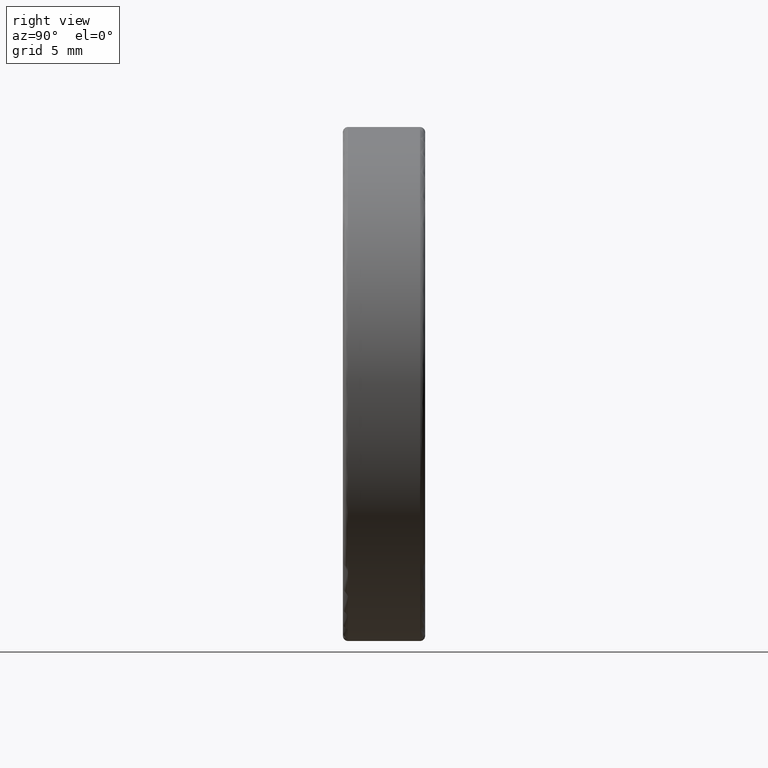
[diagram: clean part render]
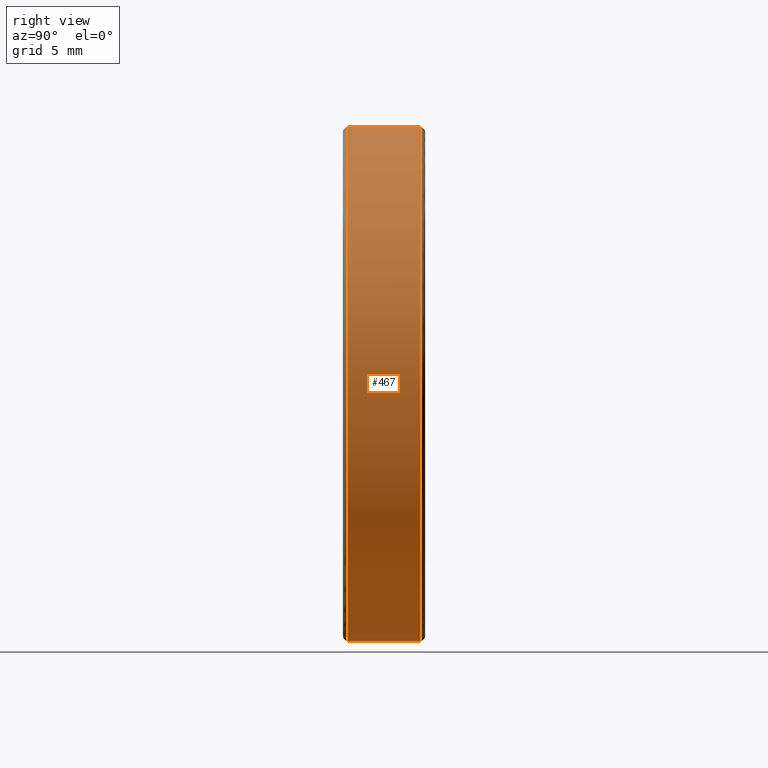
[diagram: same view with one face highlighted and labeled with its STEP entity id]
A machine part, right view. The second image highlights one B-rep face of the part: STEP entity #467.
In plain terms, the highlighted cylindrical surface (partial cylindrical patch) has radius 12.5 mm, axis along (-0, -1, -0).
Its self-contained STEP definition (entity closure, byte-faithful):
#35 = CARTESIAN_POINT ( 'NONE',  ( -4.682026255059964726, 0.1550240230017252141, 37.50000000000000711 ) ) ;
#40 = CARTESIAN_POINT ( 'NONE',  ( -4.682026255059962949, -3.344975976998274980, 12.50000000000000000 ) ) ;
#45 = ORIENTED_EDGE ( 'NONE', *, *, #162, .T. ) ;
#50 = VERTEX_POINT ( 'NONE', #674 ) ;
#53 = CYLINDRICAL_SURFACE ( 'NONE', #597, 12.50000000000000000 ) ;
#76 = DIRECTION ( 'NONE',  ( -0.0000000000000000000, -1.000000000000000000, -0.0000000000000000000 ) ) ;
#81 = DIRECTION ( 'NONE',  ( 0.0000000000000000000, 1.000000000000000000, 0.0000000000000000000 ) ) ;
#114 = CARTESIAN_POINT ( 'NONE',  ( -4.682026255059964726, 0.1550240230017252141, 25.00000000000000000 ) ) ;
#125 = DIRECTION ( 'NONE',  ( 0.0000000000000000000, 0.0000000000000000000, -1.000000000000000000 ) ) ;
#128 = VERTEX_POINT ( 'NONE', #40 ) ;
#162 = EDGE_CURVE ( 'NONE', #604, #50, #164, .T. ) ;
#164 = LINE ( 'NONE', #320, #671 ) ;
#175 = CARTESIAN_POINT ( 'NONE',  ( -4.682026255059964726, 0.4050240230017252419, 25.00000000000000000 ) ) ;
#256 = CIRCLE ( 'NONE', #466, 12.50000000000000355 ) ;
#270 = EDGE_CURVE ( 'NONE', #497, #128, #619, .T. ) ;
#281 = DIRECTION ( 'NONE',  ( -0.0000000000000000000, -1.000000000000000000, -0.0000000000000000000 ) ) ;
#320 = CARTESIAN_POINT ( 'NONE',  ( -4.682026255059962949, 0.4050240230017252419, 37.50000000000000711 ) ) ;
#322 = ORIENTED_EDGE ( 'NONE', *, *, #457, .T. ) ;
#373 = ORIENTED_EDGE ( 'NONE', *, *, #270, .F. ) ;
#384 = ORIENTED_EDGE ( 'NONE', *, *, #588, .T. ) ;
#392 = EDGE_LOOP ( 'NONE', ( #322, #45, #384, #373 ) ) ;
#393 = AXIS2_PLACEMENT_3D ( 'NONE', #522, #81, #525 ) ;
#399 = DIRECTION ( 'NONE',  ( -0.0000000000000000000, -1.000000000000000000, -0.0000000000000000000 ) ) ;
#448 = DIRECTION ( 'NONE',  ( 0.0000000000000000000, 0.0000000000000000000, 1.000000000000000000 ) ) ;
#457 = EDGE_CURVE ( 'NONE', #497, #604, #256, .T. ) ;
#466 = AXIS2_PLACEMENT_3D ( 'NONE', #114, #281, #448 ) ;
#467 = ADVANCED_FACE ( 'NONE', ( #672 ), #53, .T. ) ;
#497 = VERTEX_POINT ( 'NONE', #582 ) ;
#522 = CARTESIAN_POINT ( 'NONE',  ( -4.682026255059964726, -3.344975976998274980, 25.00000000000000000 ) ) ;
#525 = DIRECTION ( 'NONE',  ( 0.0000000000000000000, 0.0000000000000000000, 1.000000000000000000 ) ) ;
#540 = DIRECTION ( 'NONE',  ( -0.0000000000000000000, -1.000000000000000000, -0.0000000000000000000 ) ) ;
#576 = CARTESIAN_POINT ( 'NONE',  ( -4.682026255059964726, 0.4050240230017252419, 12.50000000000000000 ) ) ;
#582 = CARTESIAN_POINT ( 'NONE',  ( -4.682026255059962949, 0.1550240230017252141, 12.50000000000000000 ) ) ;
#588 = EDGE_CURVE ( 'NONE', #50, #128, #709, .T. ) ;
#597 = AXIS2_PLACEMENT_3D ( 'NONE', #175, #399, #125 ) ;
#604 = VERTEX_POINT ( 'NONE', #35 ) ;
#619 = LINE ( 'NONE', #576, #651 ) ;
#651 = VECTOR ( 'NONE', #76, 1000.000000000000000 ) ;
#671 = VECTOR ( 'NONE', #540, 1000.000000000000000 ) ;
#672 = FACE_OUTER_BOUND ( 'NONE', #392, .T. ) ;
#674 = CARTESIAN_POINT ( 'NONE',  ( -4.682026255059964726, -3.344975976998274980, 37.50000000000000711 ) ) ;
#709 = CIRCLE ( 'NONE', #393, 12.50000000000000355 ) ;